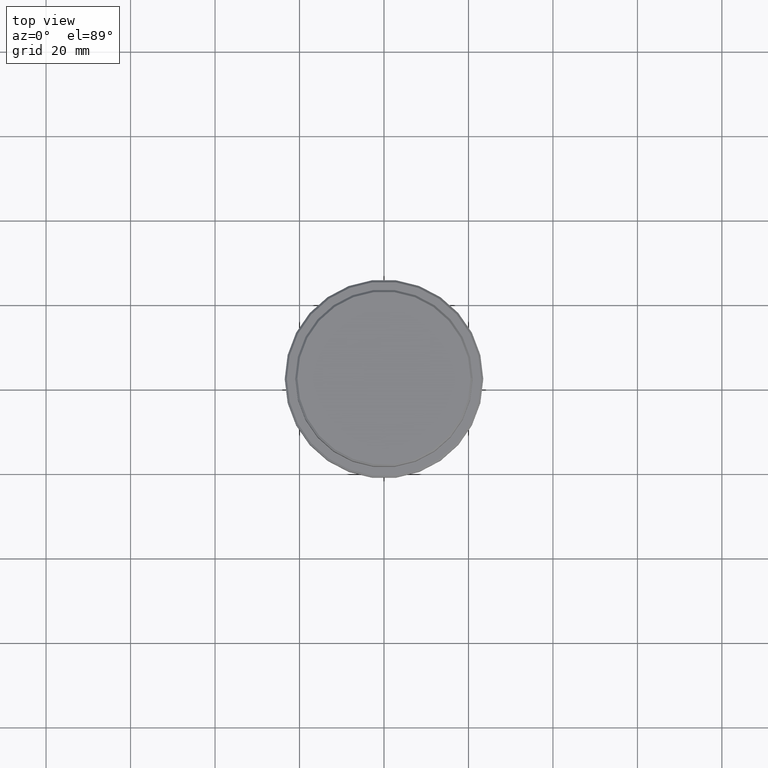
[diagram: clean part render]
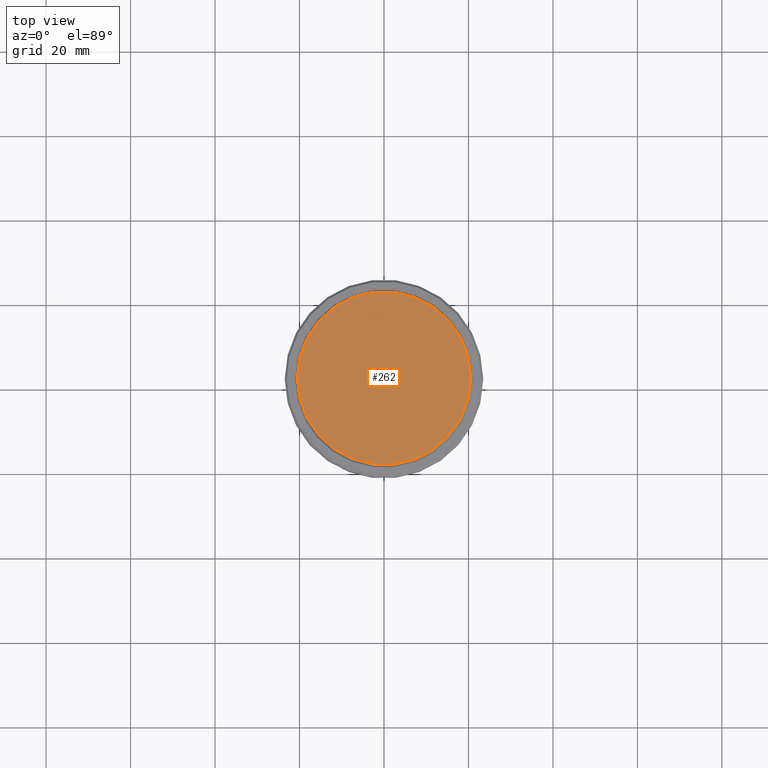
[diagram: same view with one face highlighted and labeled with its STEP entity id]
A machine part, top view. The second image highlights one B-rep face of the part: STEP entity #262.
In plain terms, the highlighted planar face has unit normal (0, -0, 1).
Its self-contained STEP definition (entity closure, byte-faithful):
#29 = EDGE_LOOP ( 'NONE', ( #281, #90 ) ) ;
#42 = VERTEX_POINT ( 'NONE', #1413 ) ;
#44 = DIRECTION ( 'NONE',  ( 1.000000000000000000, 0.000000000000000000, 0.000000000000000000 ) ) ;
#55 = DIRECTION ( 'NONE',  ( -0.000000000000000000, -0.000000000000000000, 1.000000000000000000 ) ) ;
#90 = ORIENTED_EDGE ( 'NONE', *, *, #826, .T. ) ;
#102 = DIRECTION ( 'NONE',  ( 1.000000000000000000, 0.000000000000000000, 0.000000000000000000 ) ) ;
#262 = ADVANCED_FACE ( 'NONE', ( #999 ), #347, .T. ) ;
#270 = AXIS2_PLACEMENT_3D ( 'NONE', #1031, #280, #44 ) ;
#280 = DIRECTION ( 'NONE',  ( 0.000000000000000000, -0.000000000000000000, 1.000000000000000000 ) ) ;
#281 = ORIENTED_EDGE ( 'NONE', *, *, #678, .T. ) ;
#347 = PLANE ( 'NONE',  #270 ) ;
#384 = DIRECTION ( 'NONE',  ( 1.000000000000000000, 0.000000000000000000, 0.000000000000000000 ) ) ;
#471 = CIRCLE ( 'NONE', #936, 20.50000000000001776 ) ;
#484 = VERTEX_POINT ( 'NONE', #1169 ) ;
#580 = CARTESIAN_POINT ( 'NONE',  ( 0.000000000000000000, 0.000000000000000000, 0.000000000000000000 ) ) ;
#678 = EDGE_CURVE ( 'NONE', #484, #42, #471, .T. ) ;
#683 = CARTESIAN_POINT ( 'NONE',  ( 0.000000000000000000, 0.000000000000000000, 0.000000000000000000 ) ) ;
#744 = CIRCLE ( 'NONE', #1202, 20.50000000000001776 ) ;
#826 = EDGE_CURVE ( 'NONE', #42, #484, #744, .T. ) ;
#936 = AXIS2_PLACEMENT_3D ( 'NONE', #683, #1330, #102 ) ;
#999 = FACE_OUTER_BOUND ( 'NONE', #29, .T. ) ;
#1031 = CARTESIAN_POINT ( 'NONE',  ( 0.000000000000000000, 0.000000000000000000, 0.000000000000000000 ) ) ;
#1169 = CARTESIAN_POINT ( 'NONE',  ( -20.50000000000001776, 0.000000000000000000, 0.000000000000000000 ) ) ;
#1202 = AXIS2_PLACEMENT_3D ( 'NONE', #580, #55, #384 ) ;
#1330 = DIRECTION ( 'NONE',  ( -0.000000000000000000, -0.000000000000000000, 1.000000000000000000 ) ) ;
#1413 = CARTESIAN_POINT ( 'NONE',  ( 20.50000000000001776, 2.541142108230759057E-15, 0.000000000000000000 ) ) ;